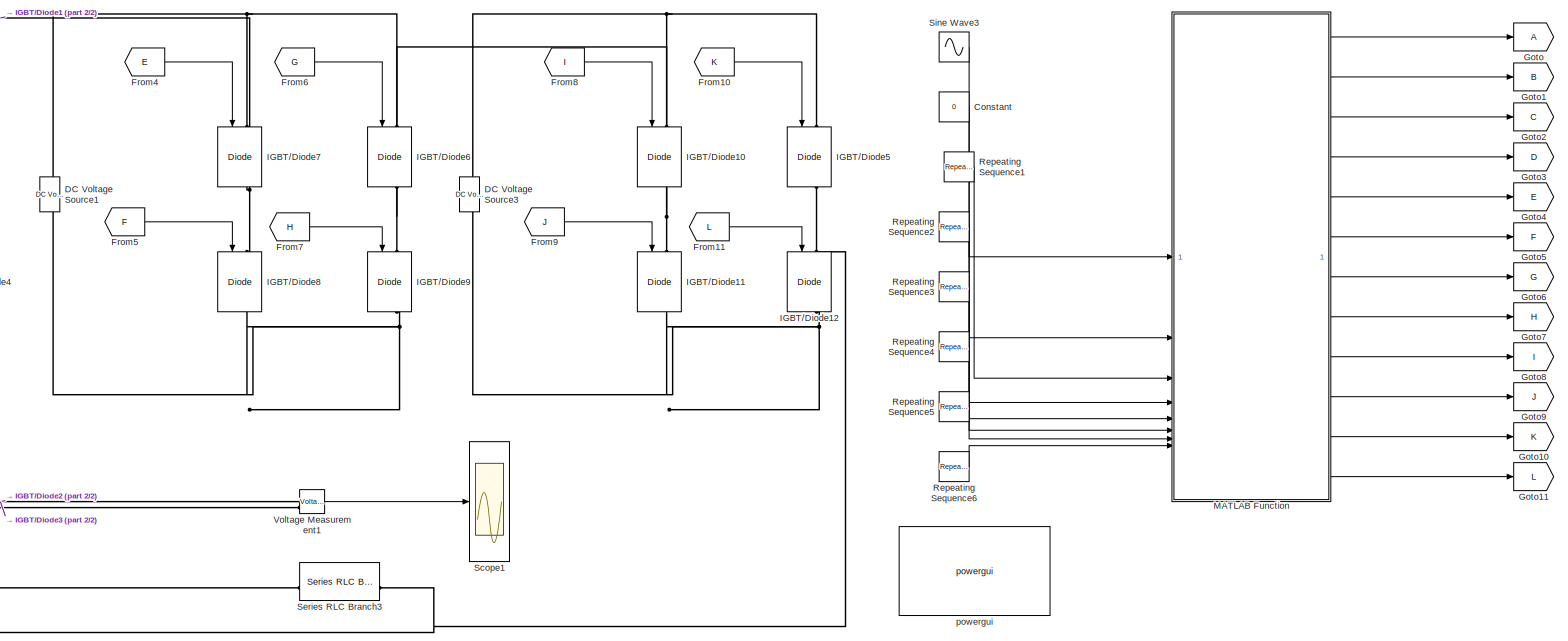
[diagram: root canvas - part 1/2, most of the canvas]
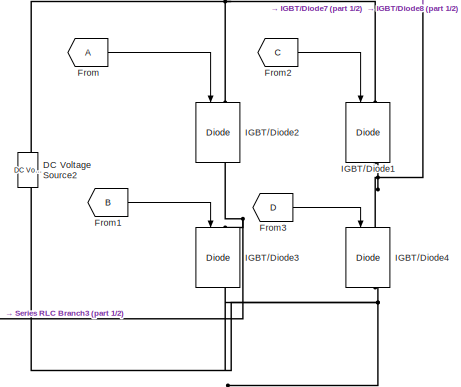
[diagram: root canvas - part 2/2, middle left region]
MODEL slx_c38f81c8985c
KIND model
CONFIG AbsTol = auto
CONFIG EnableMultiTasking = off
CONFIG FixedStep = auto
CONFIG MaxStep = auto
CONFIG MinStep = auto
CONFIG RelTol = 1e-3
CONFIG SampleTimeConstraint = Unconstrained
CONFIG SolverName = VariableStepAuto
CONFIG StartTime = 0.0
CONFIG StopTime = 10.0
BLOCK [Constant] Constant
  Value = 0
BLOCK [Reference] DC Voltage Source1  REF=spsDCVoltageSourceLib/DC Voltage Source
  SourceBlock = spsDCVoltageSourceLib/DC Voltage Source
  SourceType = DC Voltage Source
BLOCK [Reference] DC Voltage Source2  REF=spsDCVoltageSourceLib/DC Voltage Source
  SourceBlock = spsDCVoltageSourceLib/DC Voltage Source
  SourceType = DC Voltage Source
BLOCK [Reference] DC Voltage Source3  REF=spsDCVoltageSourceLib/DC Voltage Source
  SourceBlock = spsDCVoltageSourceLib/DC Voltage Source
  SourceType = DC Voltage Source
BLOCK [From] From
BLOCK [From] From1
  GotoTag = B
BLOCK [From] From10
  GotoTag = K
BLOCK [From] From11
  GotoTag = L
BLOCK [From] From2
  GotoTag = C
BLOCK [From] From3
  GotoTag = D
BLOCK [From] From4
  GotoTag = E
BLOCK [From] From5
  GotoTag = F
BLOCK [From] From6
  GotoTag = G
BLOCK [From] From7
  GotoTag = H
BLOCK [From] From8
  GotoTag = I
BLOCK [From] From9
  GotoTag = J
BLOCK [Goto] Goto
BLOCK [Goto] Goto1
  GotoTag = B
BLOCK [Goto] Goto10
  GotoTag = K
BLOCK [Goto] Goto11
  GotoTag = L
BLOCK [Goto] Goto2
  GotoTag = C
BLOCK [Goto] Goto3
  GotoTag = D
BLOCK [Goto] Goto4
  GotoTag = E
BLOCK [Goto] Goto5
  GotoTag = F
BLOCK [Goto] Goto6
  GotoTag = G
BLOCK [Goto] Goto7
  GotoTag = H
BLOCK [Goto] Goto8
  GotoTag = I
BLOCK [Goto] Goto9
  GotoTag = J
BLOCK [Reference] IGBT//Diode1  REF=spsIGBTDiodeLib/IGBT//Diode
  NameLocation = left
  SourceBlock = spsIGBTDiodeLib/IGBT//Diode
  SourceType = IGBT/Diode
BLOCK [Reference] IGBT//Diode10  REF=spsIGBTDiodeLib/IGBT//Diode
  NameLocation = left
  SourceBlock = spsIGBTDiodeLib/IGBT//Diode
  SourceType = IGBT/Diode
BLOCK [Reference] IGBT//Diode11  REF=spsIGBTDiodeLib/IGBT//Diode
  NameLocation = left
  SourceBlock = spsIGBTDiodeLib/IGBT//Diode
  SourceType = IGBT/Diode
BLOCK [Reference] IGBT//Diode12  REF=spsIGBTDiodeLib/IGBT//Diode
  NameLocation = left
  SourceBlock = spsIGBTDiodeLib/IGBT//Diode
  SourceType = IGBT/Diode
BLOCK [Reference] IGBT//Diode2  REF=spsIGBTDiodeLib/IGBT//Diode
  NameLocation = left
  SourceBlock = spsIGBTDiodeLib/IGBT//Diode
  SourceType = IGBT/Diode
BLOCK [Reference] IGBT//Diode3  REF=spsIGBTDiodeLib/IGBT//Diode
  NameLocation = left
  SourceBlock = spsIGBTDiodeLib/IGBT//Diode
  SourceType = IGBT/Diode
BLOCK [Reference] IGBT//Diode4  REF=spsIGBTDiodeLib/IGBT//Diode
  NameLocation = left
  SourceBlock = spsIGBTDiodeLib/IGBT//Diode
  SourceType = IGBT/Diode
BLOCK [Reference] IGBT//Diode5  REF=spsIGBTDiodeLib/IGBT//Diode
  NameLocation = left
  SourceBlock = spsIGBTDiodeLib/IGBT//Diode
  SourceType = IGBT/Diode
BLOCK [Reference] IGBT//Diode6  REF=spsIGBTDiodeLib/IGBT//Diode
  NameLocation = left
  SourceBlock = spsIGBTDiodeLib/IGBT//Diode
  SourceType = IGBT/Diode
BLOCK [Reference] IGBT//Diode7  REF=spsIGBTDiodeLib/IGBT//Diode
  NameLocation = left
  SourceBlock = spsIGBTDiodeLib/IGBT//Diode
  SourceType = IGBT/Diode
BLOCK [Reference] IGBT//Diode8  REF=spsIGBTDiodeLib/IGBT//Diode
  NameLocation = left
  SourceBlock = spsIGBTDiodeLib/IGBT//Diode
  SourceType = IGBT/Diode
BLOCK [Reference] IGBT//Diode9  REF=spsIGBTDiodeLib/IGBT//Diode
  NameLocation = left
  SourceBlock = spsIGBTDiodeLib/IGBT//Diode
  SourceType = IGBT/Diode
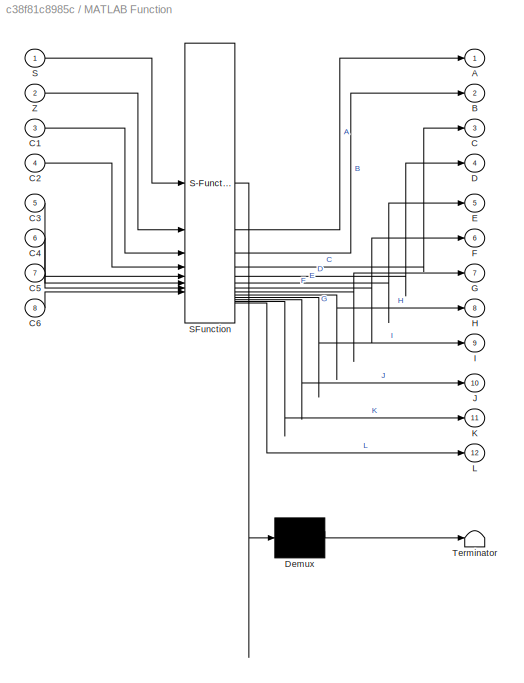
BLOCK [SubSystem] MATLAB Function
  ErrorFcn = Stateflow.Translate.translate
  PermitHierarchicalResolution = ExplicitOnly
  SFBlockType = MATLAB Function
  TreatAsAtomicUnit = on
BLOCK [Demux] MATLAB Function/ Demux 
  Outputs = 1
BLOCK [S-Function] MATLAB Function/ SFunction 
  EnableBusSupport = on
  FunctionName = sf_sfun
  PortCounts = [8 13]
  SFcnIsStateOwnerBlock = off
  SFunctionDeploymentMode = off
  Tag = Stateflow S-Function 2
BLOCK [Terminator] MATLAB Function/ Terminator 
BLOCK [Outport] MATLAB Function/A
BLOCK [Outport] MATLAB Function/B
  Port = 2
BLOCK [Outport] MATLAB Function/C
  Port = 3
BLOCK [Inport] MATLAB Function/C1
  Port = 3
BLOCK [Inport] MATLAB Function/C2
  Port = 4
BLOCK [Inport] MATLAB Function/C3
  Port = 5
BLOCK [Inport] MATLAB Function/C4
  Port = 6
BLOCK [Inport] MATLAB Function/C5
  Port = 7
BLOCK [Inport] MATLAB Function/C6
  Port = 8
BLOCK [Outport] MATLAB Function/D
  Port = 4
BLOCK [Outport] MATLAB Function/E
  Port = 5
BLOCK [Outport] MATLAB Function/F
  Port = 6
BLOCK [Outport] MATLAB Function/G
  Port = 7
BLOCK [Outport] MATLAB Function/H
  Port = 8
BLOCK [Outport] MATLAB Function/I
  Port = 9
BLOCK [Outport] MATLAB Function/J
  Port = 10
BLOCK [Outport] MATLAB Function/K
  Port = 11
BLOCK [Outport] MATLAB Function/L
  Port = 12
BLOCK [Inport] MATLAB Function/S
BLOCK [Inport] MATLAB Function/Z
  Port = 2
BLOCK [Reference] Repeating Sequence1  REF=simulink/Sources/Repeating
Sequence
  SourceBlock = simulink/Sources/Repeating\nSequence
  SourceType = Repeating table
BLOCK [Reference] Repeating Sequence2  REF=simulink/Sources/Repeating
Sequence
  SourceBlock = simulink/Sources/Repeating\nSequence
  SourceType = Repeating table
BLOCK [Reference] Repeating Sequence3  REF=simulink/Sources/Repeating
Sequence
  SourceBlock = simulink/Sources/Repeating\nSequence
  SourceType = Repeating table
BLOCK [Reference] Repeating Sequence4  REF=simulink/Sources/Repeating
Sequence
  SourceBlock = simulink/Sources/Repeating\nSequence
  SourceType = Repeating table
BLOCK [Reference] Repeating Sequence5  REF=simulink/Sources/Repeating
Sequence
  SourceBlock = simulink/Sources/Repeating\nSequence
  SourceType = Repeating table
BLOCK [Reference] Repeating Sequence6  REF=simulink/Sources/Repeating
Sequence
  SourceBlock = simulink/Sources/Repeating\nSequence
  SourceType = Repeating table
BLOCK [Scope] Scope1
  Floating = off
  NumInputPorts = 1
  ScopeSpecificationString = Simulink.scopes.TimeScopeBlockCfg('CurrentConfiguration', extmgr.ConfigurationSet(extmgr.Configuration('Core','General UI',true),extmgr.Configuration('Core','Source UI',true),extmgr.Configuration('Sources','WiredSimulink',true),extmgr.Configuration('Visuals','Time Domain',true,'SerializedDisplays',{struct('MinYLimReal','-375.00536','MaxYLimReal','375.01019','YLabelReal','','MinYLimMag',' 0.00000',...<+1608ch>
BLOCK [Reference] Series RLC Branch3  REF=spsSeriesRLCBranchLib/Series RLC Branch
  SourceBlock = spsSeriesRLCBranchLib/Series RLC Branch
  SourceType = Series RLC Branch
BLOCK [Sin] Sine Wave3
  Frequency = 2*pi*50
BLOCK [Reference] Voltage Measurement1  REF=spsVoltageMeasurementLib/Voltage Measurement
  SourceBlock = spsVoltageMeasurementLib/Voltage Measurement
  SourceType = Voltage Measurement
  UserDataPersistent = on
BLOCK [Reference] powergui  REF=spspowerguiLib/powergui
  Priority = 1
  SourceBlock = spspowerguiLib/powergui
  SourceType = PSB option menu block
LINE Constant:1 -> MATLAB Function:2
LINE From10:1 -> IGBT//Diode5:1
LINE From11:1 -> IGBT//Diode12:1
LINE From1:1 -> IGBT//Diode3:1
LINE From2:1 -> IGBT//Diode1:1
LINE From3:1 -> IGBT//Diode4:1
LINE From4:1 -> IGBT//Diode7:1
LINE From5:1 -> IGBT//Diode8:1
LINE From6:1 -> IGBT//Diode6:1
LINE From7:1 -> IGBT//Diode9:1
LINE From8:1 -> IGBT//Diode10:1
LINE From9:1 -> IGBT//Diode11:1
LINE From:1 -> IGBT//Diode2:1
LINE MATLAB Function:1 -> Goto:1
LINE MATLAB Function:10 -> Goto9:1
LINE MATLAB Function:11 -> Goto10:1
LINE MATLAB Function:12 -> Goto11:1
LINE MATLAB Function:2 -> Goto1:1
LINE MATLAB Function:3 -> Goto2:1
LINE MATLAB Function:4 -> Goto3:1
LINE MATLAB Function:5 -> Goto4:1
LINE MATLAB Function:6 -> Goto5:1
LINE MATLAB Function:7 -> Goto6:1
LINE MATLAB Function:8 -> Goto7:1
LINE MATLAB Function:9 -> Goto8:1
LINE Repeating Sequence1:1 -> MATLAB Function:3
LINE Repeating Sequence2:1 -> MATLAB Function:4
LINE Repeating Sequence3:1 -> MATLAB Function:5
LINE Repeating Sequence4:1 -> MATLAB Function:6
LINE Repeating Sequence5:1 -> MATLAB Function:7
LINE Repeating Sequence6:1 -> MATLAB Function:8
LINE Sine Wave3:1 -> MATLAB Function:1
LINE Voltage Measurement1:1 -> Scope1:1
PNET net1: DC Voltage Source1:LConn1 -- IGBT//Diode8:RConn1 -- IGBT//Diode9:RConn1
PNET net2: DC Voltage Source1:RConn1 -- IGBT//Diode6:LConn1 -- IGBT//Diode7:LConn1
PNET net3: DC Voltage Source2:LConn1 -- IGBT//Diode3:RConn1 -- IGBT//Diode4:RConn1
PNET net4: DC Voltage Source2:RConn1 -- IGBT//Diode1:LConn1 -- IGBT//Diode2:LConn1
PNET net5: DC Voltage Source3:LConn1 -- IGBT//Diode11:RConn1 -- IGBT//Diode12:RConn1
PNET net6: DC Voltage Source3:RConn1 -- IGBT//Diode10:LConn1 -- IGBT//Diode5:LConn1
PNET net7: IGBT//Diode10:RConn1 -- IGBT//Diode11:LConn1 -- IGBT//Diode6:RConn1 -- IGBT//Diode9:LConn1
PNET net8: IGBT//Diode12:LConn1 -- IGBT//Diode5:RConn1 -- Series RLC Branch3:RConn1 -- Voltage Measurement1:LConn2
PNET net9: IGBT//Diode1:RConn1 -- IGBT//Diode4:LConn1 -- IGBT//Diode7:RConn1 -- IGBT//Diode8:LConn1
PNET net10: IGBT//Diode2:RConn1 -- IGBT//Diode3:LConn1 -- Series RLC Branch3:LConn1 -- Voltage Measurement1:LConn1
note: PNET lines group multi-terminal physical nets as a canonical sorted terminal list (undirected conserving connections); 2-terminal nets keep the pairwise PLINE form
CHART MATLAB Function states=1 transitions=1
  STATE_LABEL 'eML_blk_kernel()'
  STATE_LABEL 'SCRIPT:\nfunction [A,B,C,D,E,F,G,H,I,J,K,L]= myfcn(S,Z,C1,C2,C3,C4,C5,C6)\n    a=0;b=0;c=0;d=0;e=0;f=0;g=0;h=0;i=0;j=0;k=0;l=0;\nif S>Z&&S>C1&&S<C2&&S<C3%1/3Vdc\n    a=1;\n    b=0;\n    c=0;\n    d=1;\n    e=1;\n    f=0;\n    g=1;\n    h=0;\n    i=1;\n    j=0;\n    k=1;\n    l=0;\nelseif S>Z&&S>C1&&S>C2&&S<C3%2/3Vdc\n    a=1;\n    b=0;\n    c=1;\n    d=0;\n    e=1;\n    f=0;\n    g=0;\n    h=1;\n    i=1;\n    j=0;\n    k=0;...<+964ch>'
CHART  states=0 transitions=0
